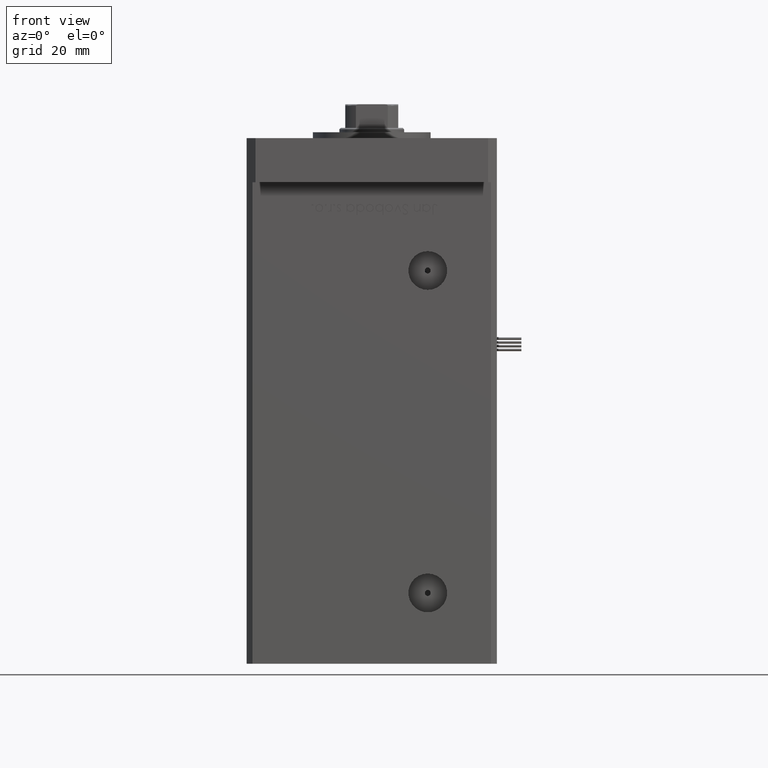
[diagram: clean part render]
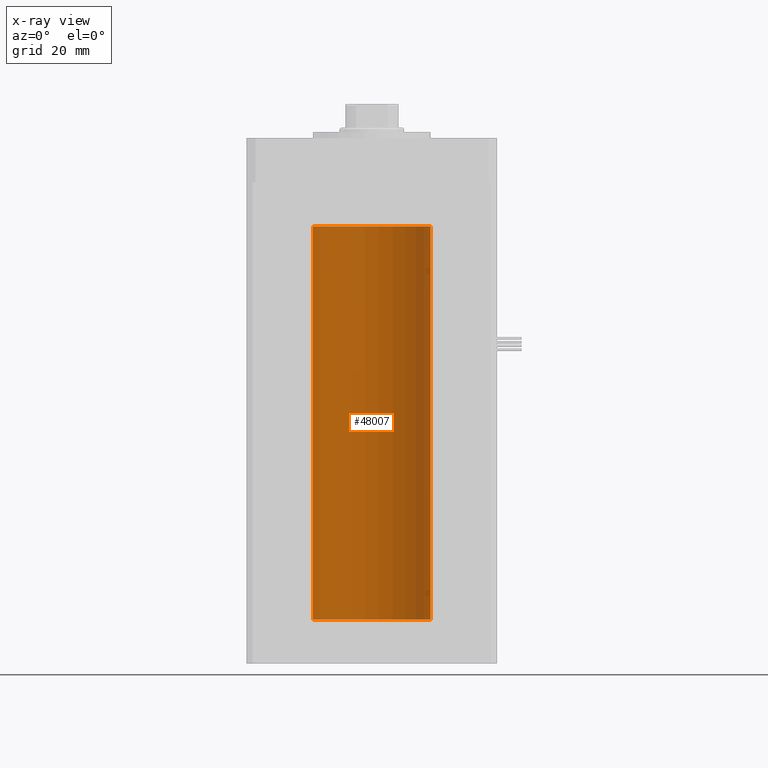
[diagram: x-ray — body ghosted, one internal face saturated and labeled with its STEP entity id]
A machine part, front view, then the same camera in x-ray: the body is ghosted and one INTERNAL B-rep face — a face not visible from any outside direction — is saturated and labeled: STEP entity #48007.
In plain terms, the highlighted cylindrical surface (partial cylindrical patch) has radius 20 mm, axis along (-0, -0, -1).
Its self-contained STEP definition (entity closure, byte-faithful):
#2581 = DIRECTION ( 'NONE',  ( 1.000000000000000000, 0.000000000000000000, 0.000000000000000000 ) ) ;
#3160 = CYLINDRICAL_SURFACE ( 'NONE', #46611, 20.00000000000000000 ) ;
#11188 = DIRECTION ( 'NONE',  ( -0.000000000000000000, 0.000000000000000000, 1.000000000000000000 ) ) ;
#11836 = LINE ( 'NONE', #29290, #45602 ) ;
#14367 = VECTOR ( 'NONE', #31380, 1000.000000000000000 ) ;
#16317 = FACE_OUTER_BOUND ( 'NONE', #29191, .T. ) ;
#17050 = CIRCLE ( 'NONE', #44446, 20.00000000000000000 ) ;
#17312 = EDGE_CURVE ( 'NONE', #54330, #20355, #31982, .T. ) ;
#20355 = VERTEX_POINT ( 'NONE', #31181 ) ;
#20938 = VERTEX_POINT ( 'NONE', #56253 ) ;
#21834 = DIRECTION ( 'NONE',  ( -0.000000000000000000, 0.000000000000000000, 1.000000000000000000 ) ) ;
#23072 = CARTESIAN_POINT ( 'NONE',  ( 20.00000000000000000, 2.449293598294706513E-15, 133.5000000000000000 ) ) ;
#23875 = DIRECTION ( 'NONE',  ( -0.000000000000000000, -0.000000000000000000, -1.000000000000000000 ) ) ;
#25213 = CARTESIAN_POINT ( 'NONE',  ( -20.00000000000000000, 0.000000000000000000, 133.5000000000000000 ) ) ;
#28456 = VERTEX_POINT ( 'NONE', #25213 ) ;
#29191 = EDGE_LOOP ( 'NONE', ( #52164, #43830, #54848, #33137 ) ) ;
#29290 = CARTESIAN_POINT ( 'NONE',  ( -20.00000000000000000, 0.000000000000000000, 133.5000000000000000 ) ) ;
#30708 = CARTESIAN_POINT ( 'NONE',  ( 0.000000000000000000, 0.000000000000000000, 0.000000000000000000 ) ) ;
#31181 = CARTESIAN_POINT ( 'NONE',  ( -20.00000000000000000, 0.000000000000000000, 0.000000000000000000 ) ) ;
#31380 = DIRECTION ( 'NONE',  ( -0.000000000000000000, -0.000000000000000000, -1.000000000000000000 ) ) ;
#31982 = CIRCLE ( 'NONE', #54816, 20.00000000000000000 ) ;
#33137 = ORIENTED_EDGE ( 'NONE', *, *, #17312, .F. ) ;
#33777 = DIRECTION ( 'NONE',  ( -1.000000000000000000, 0.000000000000000000, 0.000000000000000000 ) ) ;
#34150 = EDGE_CURVE ( 'NONE', #20938, #28456, #17050, .T. ) ;
#35941 = LINE ( 'NONE', #23072, #14367 ) ;
#38820 = EDGE_CURVE ( 'NONE', #20938, #54330, #35941, .T. ) ;
#39223 = CARTESIAN_POINT ( 'NONE',  ( 20.00000000000000000, 2.449293598294706513E-15, 0.000000000000000000 ) ) ;
#42081 = CARTESIAN_POINT ( 'NONE',  ( 0.000000000000000000, 0.000000000000000000, 133.5000000000000000 ) ) ;
#43830 = ORIENTED_EDGE ( 'NONE', *, *, #34150, .T. ) ;
#44446 = AXIS2_PLACEMENT_3D ( 'NONE', #55808, #11188, #2581 ) ;
#45483 = EDGE_CURVE ( 'NONE', #28456, #20355, #11836, .T. ) ;
#45602 = VECTOR ( 'NONE', #23875, 1000.000000000000000 ) ;
#46611 = AXIS2_PLACEMENT_3D ( 'NONE', #42081, #47503, #33777 ) ;
#47503 = DIRECTION ( 'NONE',  ( -0.000000000000000000, -0.000000000000000000, -1.000000000000000000 ) ) ;
#48007 = ADVANCED_FACE ( 'NONE', ( #16317 ), #3160, .F. ) ;
#52164 = ORIENTED_EDGE ( 'NONE', *, *, #38820, .F. ) ;
#53294 = DIRECTION ( 'NONE',  ( 1.000000000000000000, 0.000000000000000000, 0.000000000000000000 ) ) ;
#54330 = VERTEX_POINT ( 'NONE', #39223 ) ;
#54816 = AXIS2_PLACEMENT_3D ( 'NONE', #30708, #21834, #53294 ) ;
#54848 = ORIENTED_EDGE ( 'NONE', *, *, #45483, .T. ) ;
#55808 = CARTESIAN_POINT ( 'NONE',  ( 0.000000000000000000, 0.000000000000000000, 133.5000000000000000 ) ) ;
#56253 = CARTESIAN_POINT ( 'NONE',  ( 20.00000000000000000, 2.449293598294706513E-15, 133.5000000000000000 ) ) ;